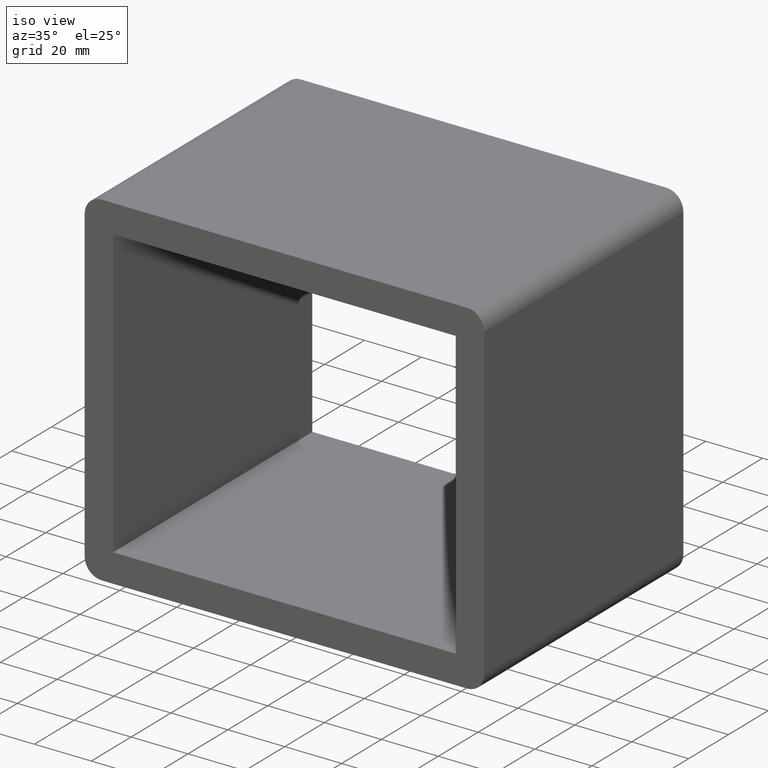
[diagram: clean part render]
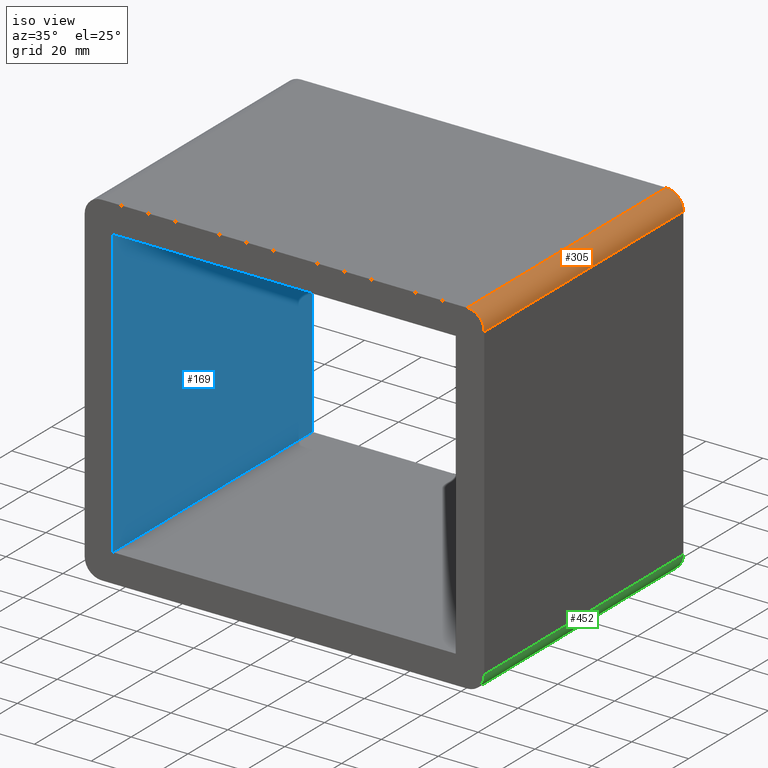
[diagram: same view with three faces highlighted in distinct colors, each labeled with its STEP entity id]
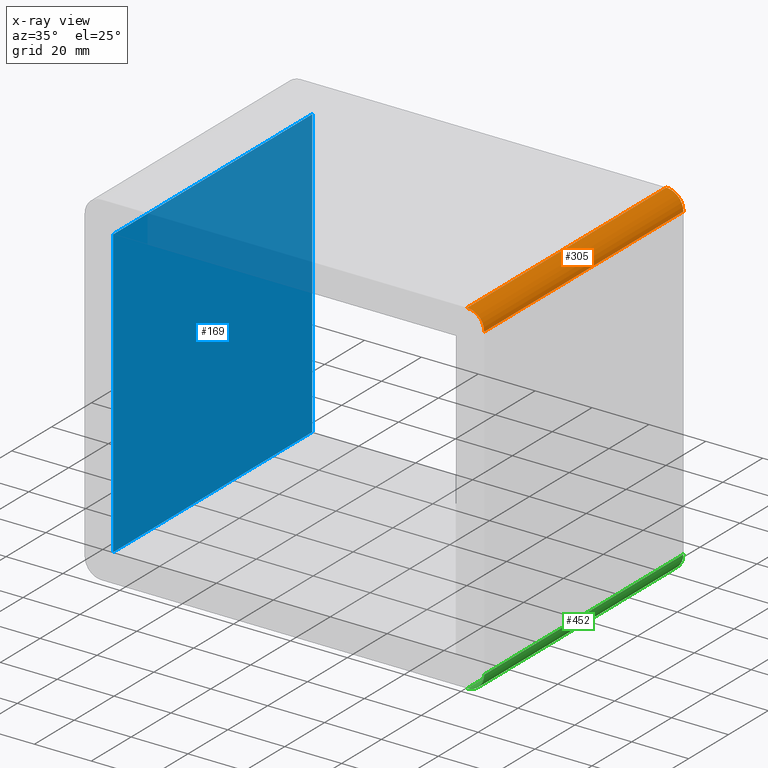
[diagram: x-ray of the same camera — body ghosted, the three highlighted faces saturated]
A machine part, iso view with three faces highlighted in distinct colors.
The next image is the same camera in x-ray (body ghosted, the three faces saturated) — at least one of them is partly hidden behind the body in this view.
Their STEP definitions:

[orange] entity #305 — the highlighted cylindrical surface (edge-blend (fillet) strip) has radius 6 mm, axis along (0, 1, 0).
#199=CARTESIAN_POINT('',(70.25,-3.0,54.500000000000028));
#200=VERTEX_POINT('',#199);
#207=CARTESIAN_POINT('',(64.25,-3.0,60.500000000000007));
#208=VERTEX_POINT('',#207);
#209=CARTESIAN_POINT('',(64.25,-3.0,54.500000000000028));
#210=DIRECTION('',(0.0,-1.0,0.0));
#211=DIRECTION('',(0.0,0.0,1.0));
#212=AXIS2_PLACEMENT_3D('',#209,#210,#211);
#213=CIRCLE('',#212,6.000000000000001);
#214=EDGE_CURVE('',#200,#208,#213,.T.);
#274=CARTESIAN_POINT('',(64.25,0.0,54.500000000000028));
#275=DIRECTION('',(0.0,1.0,0.0));
#276=DIRECTION('',(0.0,0.0,1.0));
#277=AXIS2_PLACEMENT_3D('',#274,#275,#276);
#278=CYLINDRICAL_SURFACE('',#277,6.000000000000001);
#279=CARTESIAN_POINT('',(70.25,97.0,54.500000000000028));
#280=VERTEX_POINT('',#279);
#281=CARTESIAN_POINT('',(70.25,97.0,54.500000000000028));
#282=DIRECTION('',(0.0,-1.0,0.0));
#283=VECTOR('',#282,100.0);
#284=LINE('',#281,#283);
#285=EDGE_CURVE('',#280,#200,#284,.T.);
#286=ORIENTED_EDGE('',*,*,#285,.F.);
#287=CARTESIAN_POINT('',(64.25,97.0,60.500000000000007));
#288=VERTEX_POINT('',#287);
#289=CARTESIAN_POINT('',(64.25,97.0,54.500000000000028));
#290=DIRECTION('',(0.0,1.0,0.0));
#291=DIRECTION('',(0.0,0.0,1.0));
#292=AXIS2_PLACEMENT_3D('',#289,#290,#291);
#293=CIRCLE('',#292,6.000000000000001);
#294=EDGE_CURVE('',#288,#280,#293,.T.);
#295=ORIENTED_EDGE('',*,*,#294,.F.);
#296=CARTESIAN_POINT('',(64.25,-3.0,60.500000000000007));
#297=DIRECTION('',(0.0,1.0,0.0));
#298=VECTOR('',#297,100.0);
#299=LINE('',#296,#298);
#300=EDGE_CURVE('',#208,#288,#299,.T.);
#301=ORIENTED_EDGE('',*,*,#300,.F.);
#302=ORIENTED_EDGE('',*,*,#214,.F.);
#303=EDGE_LOOP('',(#286,#295,#301,#302));
#304=FACE_OUTER_BOUND('',#303,.T.);
#305=ADVANCED_FACE('',(#304),#278,.T.);

[blue] entity #169 — the highlighted planar face has unit normal (-1, 0, 0).
#114=CARTESIAN_POINT('',(-60.25,-3.0,50.500000000000007));
#115=VERTEX_POINT('',#114);
#122=CARTESIAN_POINT('',(-60.25,97.0,50.500000000000007));
#123=VERTEX_POINT('',#122);
#124=CARTESIAN_POINT('',(-60.25,-3.0,50.500000000000007));
#125=DIRECTION('',(0.0,1.0,0.0));
#126=VECTOR('',#125,100.0);
#127=LINE('',#124,#126);
#128=EDGE_CURVE('',#115,#123,#127,.T.);
#139=CARTESIAN_POINT('',(-60.25,0.0,-50.499999999999986));
#140=DIRECTION('',(-1.0,0.0,0.0));
#141=DIRECTION('',(0.0,0.0,1.0));
#142=AXIS2_PLACEMENT_3D('',#139,#140,#141);
#143=PLANE('',#142);
#144=ORIENTED_EDGE('',*,*,#128,.F.);
#145=CARTESIAN_POINT('',(-60.25,-3.0,-50.499999999999986));
#146=VERTEX_POINT('',#145);
#147=CARTESIAN_POINT('',(-60.25,-3.0,-50.499999999999986));
#148=DIRECTION('',(0.0,0.0,1.0));
#149=VECTOR('',#148,101.0);
#150=LINE('',#147,#149);
#151=EDGE_CURVE('',#146,#115,#150,.T.);
#152=ORIENTED_EDGE('',*,*,#151,.F.);
#153=CARTESIAN_POINT('',(-60.25,97.0,-50.499999999999986));
#154=VERTEX_POINT('',#153);
#155=CARTESIAN_POINT('',(-60.25,-3.0,-50.499999999999986));
#156=DIRECTION('',(0.0,1.0,0.0));
#157=VECTOR('',#156,100.0);
#158=LINE('',#155,#157);
#159=EDGE_CURVE('',#146,#154,#158,.T.);
#160=ORIENTED_EDGE('',*,*,#159,.T.);
#161=CARTESIAN_POINT('',(-60.25,97.0,50.500000000000014));
#162=DIRECTION('',(0.0,0.0,-1.0));
#163=VECTOR('',#162,101.0);
#164=LINE('',#161,#163);
#165=EDGE_CURVE('',#123,#154,#164,.T.);
#166=ORIENTED_EDGE('',*,*,#165,.F.);
#167=EDGE_LOOP('',(#144,#152,#160,#166));
#168=FACE_OUTER_BOUND('',#167,.T.);
#169=ADVANCED_FACE('',(#168),#143,.F.);

[green] entity #452 — the highlighted cylindrical surface (edge-blend (fillet) strip) has radius 6 mm, axis along (0, 1, 0).
#197=CARTESIAN_POINT('',(70.25,-3.0,-54.499999999999993));
#198=VERTEX_POINT('',#197);
#250=CARTESIAN_POINT('',(64.25,-3.0,-60.500000000000007));
#251=VERTEX_POINT('',#250);
#258=CARTESIAN_POINT('',(64.25,-3.0,-54.499999999999993));
#259=DIRECTION('',(0.0,-1.0,0.0));
#260=DIRECTION('',(1.0,0.0,0.0));
#261=AXIS2_PLACEMENT_3D('',#258,#259,#260);
#262=CIRCLE('',#261,6.000000000000001);
#263=EDGE_CURVE('',#251,#198,#262,.T.);
#410=CARTESIAN_POINT('',(64.25,97.0,-60.500000000000007));
#411=VERTEX_POINT('',#410);
#418=CARTESIAN_POINT('',(64.25,-3.0,-60.500000000000007));
#419=DIRECTION('',(0.0,1.0,0.0));
#420=VECTOR('',#419,100.0);
#421=LINE('',#418,#420);
#422=EDGE_CURVE('',#251,#411,#421,.T.);
#428=CARTESIAN_POINT('',(64.25,0.0,-54.499999999999993));
#429=DIRECTION('',(0.0,1.0,0.0));
#430=DIRECTION('',(1.0,0.0,0.0));
#431=AXIS2_PLACEMENT_3D('',#428,#429,#430);
#432=CYLINDRICAL_SURFACE('',#431,6.000000000000001);
#433=ORIENTED_EDGE('',*,*,#422,.T.);
#434=CARTESIAN_POINT('',(70.25,97.0,-54.499999999999993));
#435=VERTEX_POINT('',#434);
#436=CARTESIAN_POINT('',(64.25,97.0,-54.499999999999993));
#437=DIRECTION('',(0.0,1.0,0.0));
#438=DIRECTION('',(1.0,0.0,0.0));
#439=AXIS2_PLACEMENT_3D('',#436,#437,#438);
#440=CIRCLE('',#439,6.000000000000001);
#441=EDGE_CURVE('',#435,#411,#440,.T.);
#442=ORIENTED_EDGE('',*,*,#441,.F.);
#443=CARTESIAN_POINT('',(70.25,-3.0,-54.499999999999993));
#444=DIRECTION('',(0.0,1.0,0.0));
#445=VECTOR('',#444,100.0);
#446=LINE('',#443,#445);
#447=EDGE_CURVE('',#198,#435,#446,.T.);
#448=ORIENTED_EDGE('',*,*,#447,.F.);
#449=ORIENTED_EDGE('',*,*,#263,.F.);
#450=EDGE_LOOP('',(#433,#442,#448,#449));
#451=FACE_OUTER_BOUND('',#450,.T.);
#452=ADVANCED_FACE('',(#451),#432,.T.);